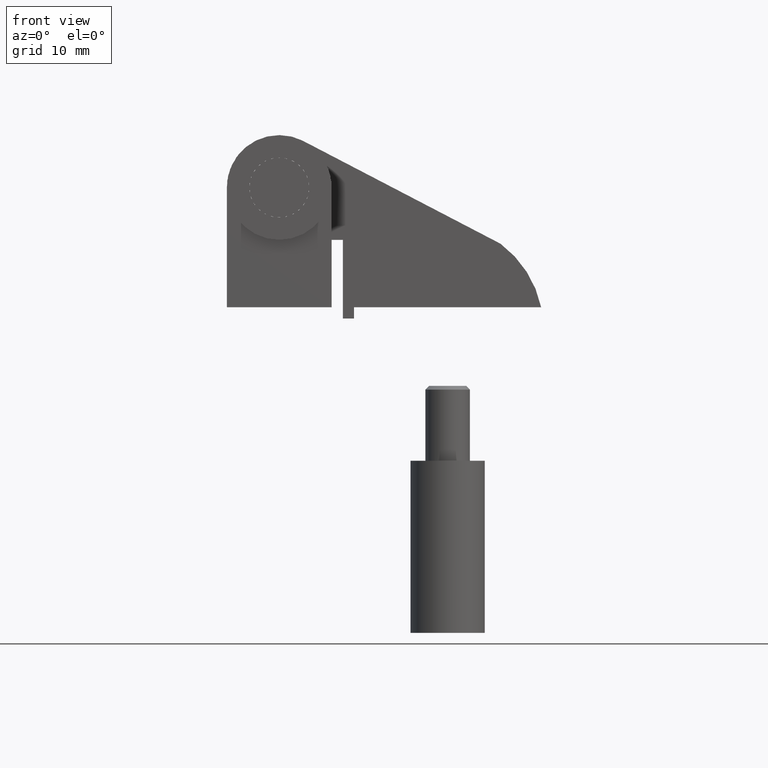
[diagram: clean part render]
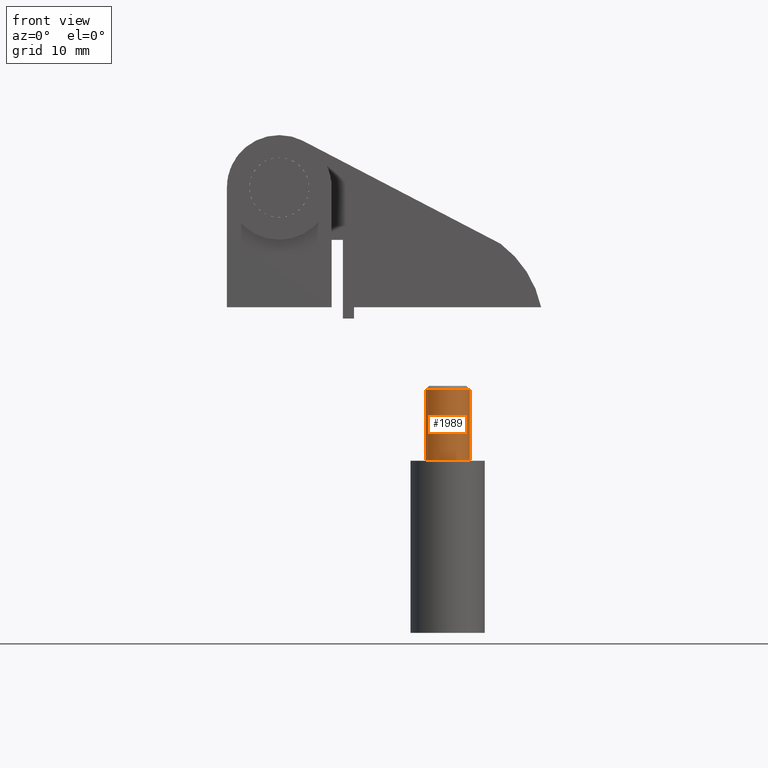
[diagram: same view with one face highlighted and labeled with its STEP entity id]
A machine part, front view. The second image highlights one B-rep face of the part: STEP entity #1989.
In plain terms, the highlighted cylindrical surface (bore or boss wall) has radius 3 mm, axis along (-0, 0, 1).
Its self-contained STEP definition (entity closure, byte-faithful):
#1925=CARTESIAN_POINT('',(15.499999999999996,2.999999999999997,-11.0));
#1926=VERTEX_POINT('',#1925);
#1933=CARTESIAN_POINT('',(15.499999999999996,-3.000000000000003,-11.0));
#1934=VERTEX_POINT('',#1933);
#1935=CARTESIAN_POINT('',(15.499999999999996,-2.479910E-015,-11.0));
#1936=DIRECTION('',(-1.224647E-016,6.123234E-017,1.0));
#1937=DIRECTION('',(6.123234E-017,1.0,-6.123234E-017));
#1938=AXIS2_PLACEMENT_3D('',#1935,#1936,#1937);
#1939=CIRCLE('',#1938,3.0);
#1940=EDGE_CURVE('',#1926,#1934,#1939,.T.);
#1942=CARTESIAN_POINT('',(15.499999999999996,-2.479910E-015,-11.0));
#1943=DIRECTION('',(-1.224647E-016,6.123234E-017,1.0));
#1944=DIRECTION('',(6.123234E-017,1.0,-6.123234E-017));
#1945=AXIS2_PLACEMENT_3D('',#1942,#1943,#1944);
#1946=CIRCLE('',#1945,3.0);
#1947=EDGE_CURVE('',#1934,#1926,#1946,.T.);
#1955=CARTESIAN_POINT('',(15.499999999999996,-2.479910E-015,-11.0));
#1956=DIRECTION('',(-1.224647E-016,6.123234E-017,1.0));
#1957=DIRECTION('',(6.123234E-017,1.0,-6.123234E-017));
#1958=AXIS2_PLACEMENT_3D('',#1955,#1956,#1957);
#1959=CYLINDRICAL_SURFACE('',#1958,3.0);
#1960=CARTESIAN_POINT('',(15.500000000000000,2.999999999999997,-20.500000000000000));
#1961=VERTEX_POINT('',#1960);
#1962=CARTESIAN_POINT('',(15.499999999999998,2.999999999999997,-11.0));
#1963=DIRECTION('',(0.0,0.0,-1.0));
#1964=VECTOR('',#1963,9.500000000000000);
#1965=LINE('',#1962,#1964);
#1966=EDGE_CURVE('',#1926,#1961,#1965,.T.);
#1967=ORIENTED_EDGE('',*,*,#1966,.T.);
#1968=CARTESIAN_POINT('',(15.500000000000000,-3.000000000000003,-20.500000000000000));
#1969=VERTEX_POINT('',#1968);
#1970=CARTESIAN_POINT('',(15.500000000000000,-3.061617E-015,-20.500000000000000));
#1971=DIRECTION('',(-1.224647E-016,6.123234E-017,1.0));
#1972=DIRECTION('',(6.123234E-017,1.0,-6.123234E-017));
#1973=AXIS2_PLACEMENT_3D('',#1970,#1971,#1972);
#1974=CIRCLE('',#1973,3.0);
#1975=EDGE_CURVE('',#1961,#1969,#1974,.T.);
#1976=ORIENTED_EDGE('',*,*,#1975,.T.);
#1977=CARTESIAN_POINT('',(15.500000000000000,-3.061617E-015,-20.500000000000000));
#1978=DIRECTION('',(-1.224647E-016,6.123234E-017,1.0));
#1979=DIRECTION('',(6.123234E-017,1.0,-6.123234E-017));
#1980=AXIS2_PLACEMENT_3D('',#1977,#1978,#1979);
#1981=CIRCLE('',#1980,3.0);
#1982=EDGE_CURVE('',#1969,#1961,#1981,.T.);
#1983=ORIENTED_EDGE('',*,*,#1982,.T.);
#1984=ORIENTED_EDGE('',*,*,#1966,.F.);
#1985=ORIENTED_EDGE('',*,*,#1947,.F.);
#1986=ORIENTED_EDGE('',*,*,#1940,.F.);
#1987=EDGE_LOOP('',(#1967,#1976,#1983,#1984,#1985,#1986));
#1988=FACE_OUTER_BOUND('',#1987,.T.);
#1989=ADVANCED_FACE('',(#1988),#1959,.T.);